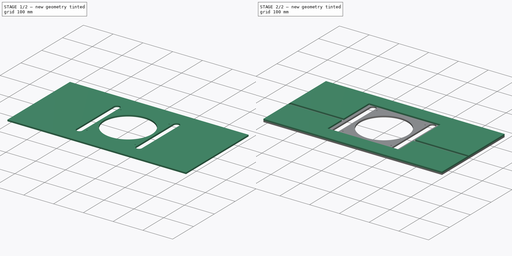
[diagram: build sequence overview — one tinted view per stage of 2, left to right]
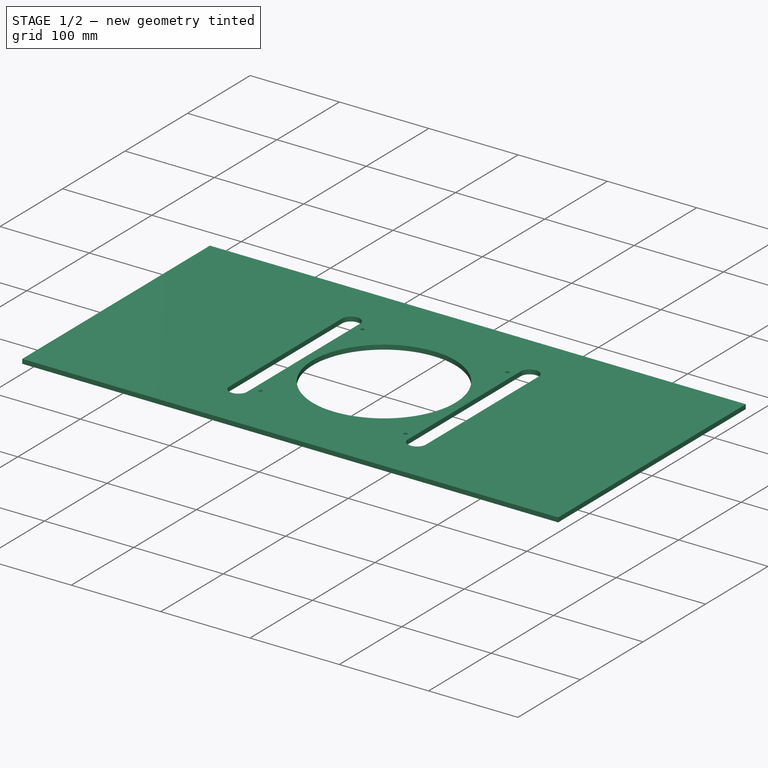
[diagram: stage 1 of 2 — iso view after this stage's code; geometry added in this stage tinted green]
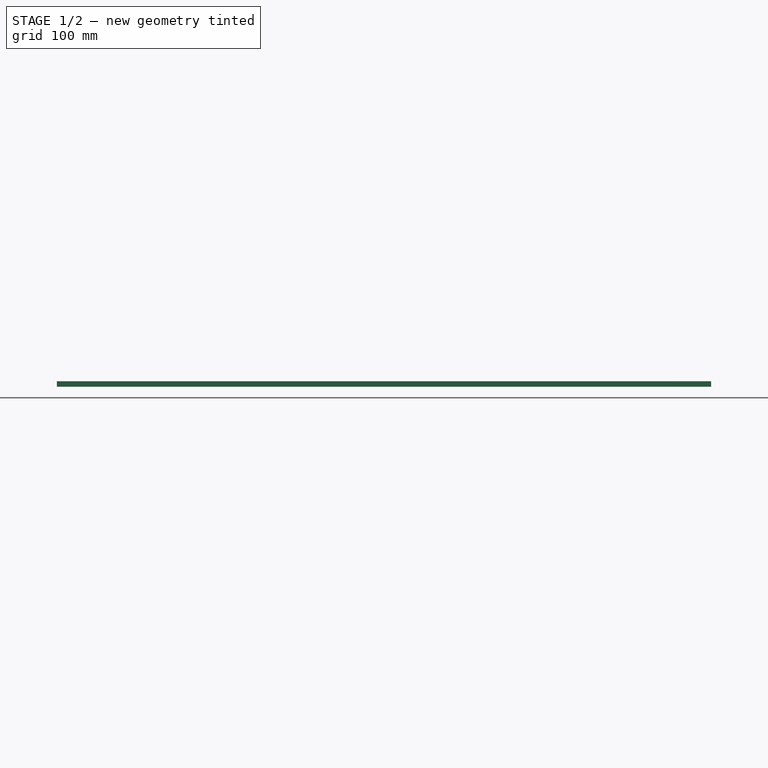
[diagram: stage 1 of 2 — front view after this stage's code; geometry added in this stage tinted green]
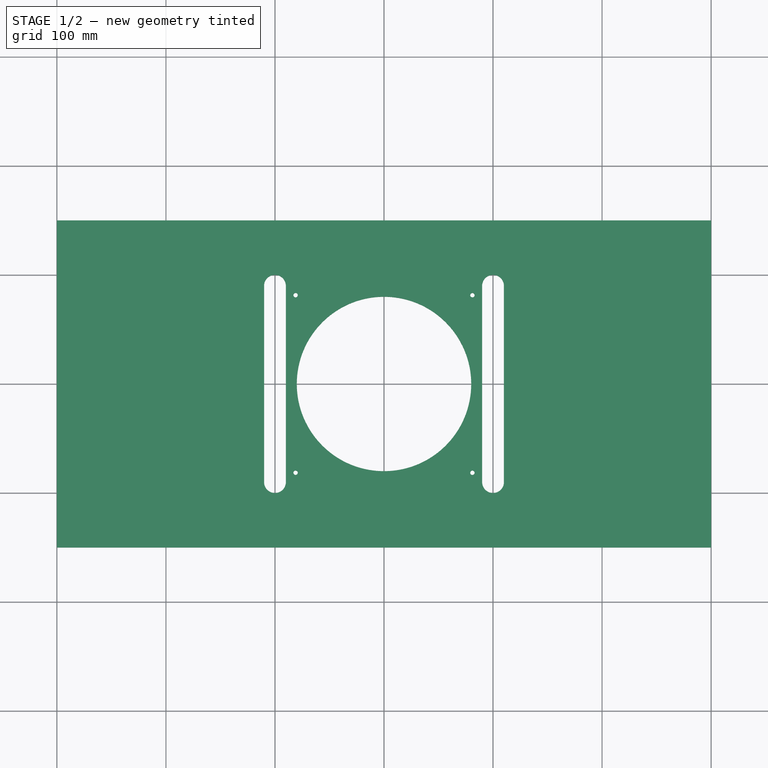
[diagram: stage 1 of 2 — top view after this stage's code; geometry added in this stage tinted green]
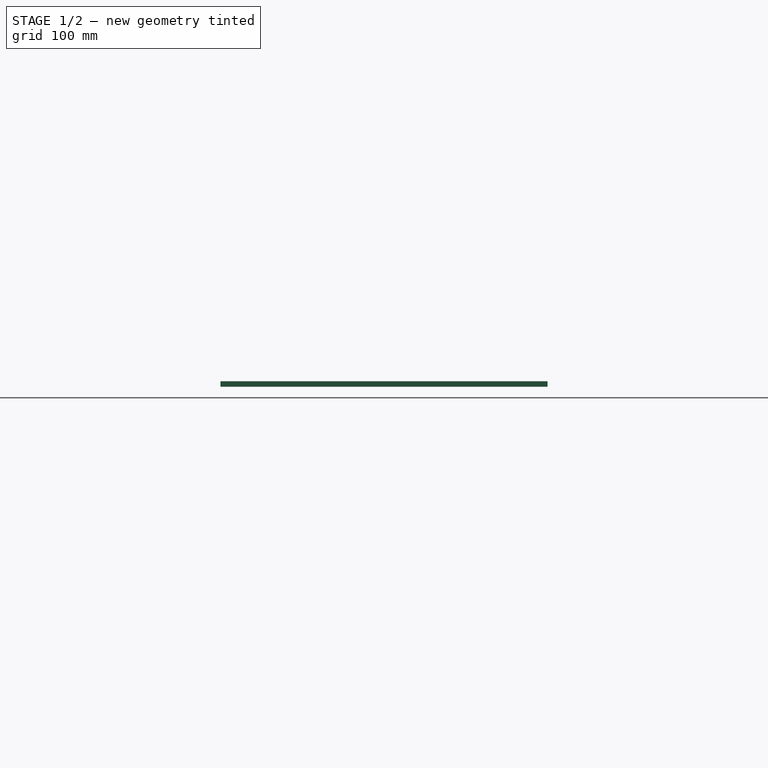
[diagram: stage 1 of 2 — right view after this stage's code; geometry added in this stage tinted green]
FCSTD DOCUMENT  (FreeCAD 0.21R33668 +26 (Git))
Label: router_accesories
License: All rights reserved
LicenseURL: http://en.wikipedia.org/wiki/All_rights_reserved
objects: Sketcher::SketchObject×4, PartDesign::Pad×2, PartDesign::Pocket×2, PartDesign::Body×2, Spreadsheet::Sheet×1
note: 14 computed .brp shape members not serialized (recipe doc carries the construction recipe); baked Part::Feature solids carry a one-line shape summary decoded from their .brp

FEATURE [PartDesign::Body] Body  label="Base01"
  Group = -> [Sketch,Pad,Sketch001,Pocket]
  Origin = -> Origin
  Tip = -> Pocket
FEATURE [Sketcher::SketchObject] Sketch002
  AttachmentOffset = pos=(0,0,-5) rot=(0,0,1;0rad)
  FullyConstrained = true
  MapMode = 5
  Placement = pos=(0,0,-5) rot=(0,0,1;0rad)
  Support = -> [XY_Plane001]
  expr: .AttachmentOffset.Base.z = -<<Dimensions>>.acrylic_width
  expr: Constraints[6] = <<Dimensions>>.base_width
  expr: Constraints[7] = <<Dimensions>>.base_depth
  sketch-geometry (4):
    g0: LineSegment StartX=-300 StartY=150 StartZ=0 EndX=300 EndY=150 EndZ=0
    g1: LineSegment StartX=300 StartY=150 StartZ=0 EndX=300 EndY=-150 EndZ=0
    g2: LineSegment StartX=300 StartY=-150 StartZ=0 EndX=-300 EndY=-150 EndZ=0
    g3: LineSegment StartX=-300 StartY=-150 StartZ=0 EndX=-300 EndY=150 EndZ=0
  constraints (10):
    c: Coincident(g0,g1)
    c: Coincident(g1,g2)
    c: Coincident(g2,g3)
    c: Coincident(g3,g0)
    c: Horizontal(g2)
    c: Vertical(g1)
    c: DistanceX(g0,g0) = 600
    c: DistanceY(g3,g3) = 300
    c: Symmetric(g0,g0,g-2)
    c: Symmetric(g2,g0,g-1)
FEATURE [PartDesign::Pad] Pad001
  Direction = (0,0,1)
  Length = 5
  Length2 = 10
  Profile = -> Sketch002
  ReferenceAxis = -> Sketch002 [N_Axis]
  Type = 0
  expr: Length = <<Dimensions>>.acrylic_width
FEATURE [Sketcher::SketchObject] Sketch003
  FullyConstrained = false
  MapMode = 5
  Support = -> [Pad001]
  expr: Constraints[18] = <<Dimensions>>.insert_depth - 20
  expr: Constraints[1] = <<Dimensions>>.router_base_diameter
  sketch-geometry (13):
    g0: Circle CenterX=0 CenterY=0 CenterZ=0 NormalX=0 NormalY=0 NormalZ=1 AngleXU=0 Radius=80
    g1: ArcOfCircle CenterX=-100 CenterY=90 CenterZ=0 NormalX=0 NormalY=0 NormalZ=1 AngleXU=0 Radius=10 StartAngle=-4.494e-13 EndAngle=3.14159
    g2: ArcOfCircle CenterX=-100 CenterY=-90 CenterZ=0 NormalX=0 NormalY=0 NormalZ=1 AngleXU=0 Radius=10 StartAngle=3.14159 EndAngle=6.28319
    g3: LineSegment StartX=-110 StartY=90 StartZ=0 EndX=-110 EndY=-90 EndZ=0
    g4: LineSegment StartX=-90 StartY=-90 StartZ=0 EndX=-90 EndY=90 EndZ=0
    g5: ArcOfCircle CenterX=100 CenterY=90 CenterZ=0 NormalX=0 NormalY=0 NormalZ=1 AngleXU=0 Radius=10 StartAngle=0 EndAngle=3.14159
    g6: ArcOfCircle CenterX=100 CenterY=-90 CenterZ=0 NormalX=0 NormalY=0 NormalZ=1 AngleXU=0 Radius=10 StartAngle=3.14159 EndAngle=6.28319
    g7: LineSegment StartX=90 StartY=90 StartZ=0 EndX=90 EndY=-90 EndZ=0
    g8: LineSegment StartX=110 StartY=-90 StartZ=0 EndX=110 EndY=90 EndZ=0
    g9: Circle CenterX=-81.0989 CenterY=81.4435 CenterZ=0 NormalX=0 NormalY=0 NormalZ=1 AngleXU=0 Radius=2
    g10: Circle CenterX=81.0989 CenterY=81.4435 CenterZ=0 NormalX=0 NormalY=0 NormalZ=1 AngleXU=0 Radius=2
    g11: Circle CenterX=-81.0989 CenterY=-81.4435 CenterZ=0 NormalX=0 NormalY=0 NormalZ=1 AngleXU=0 Radius=2
    g12: Circle CenterX=81.0989 CenterY=-81.4435 CenterZ=0 NormalX=0 NormalY=0 NormalZ=1 AngleXU=0 Radius=2
  constraints (26):
    c: Coincident(g0,g-1)
    c: Diameter(g0) = 160
    c: Tangent(g1,g3) = -1.5708
    c: Tangent(g3,g2) = -1.5708
    c: Tangent(g2,g4) = -1.5708
    c: Tangent(g4,g1) = -1.5708
    c: Vertical(g3)
    c: Tangent(g5,g7) = -1.5708
    c: Tangent(g7,g6) = -1.5708
    c: Tangent(g6,g8) = -1.5708
    c: Tangent(g8,g5) = -1.5708
    c: Vertical(g7)
    c: Symmetric(g5,g1,g-2)
    c: Equal(g1,g6)
    c: Radius(g1) = 10
    c: Symmetric(g1,g2,g-1)
    c: DistanceX(g1,g-1) = 100
    c: Symmetric(g6,g5,g-1)
    c: DistanceY(g2,g1) = 180
    c: Equal(g9,g11)
    c: Equal(g9,g12)
    c: Equal(g9,g10)
    c: Diameter(g9) = 4
    c: Symmetric(g9,g10,g-2)
    c: Symmetric(g10,g12,g-1)
    c: Symmetric(g11,g12,g-2)
FEATURE [PartDesign::Pocket] Pocket001
  BaseFeature = -> Pad001
  Direction = (0,0,-1)
  Length = 5
  Length2 = 5
  Profile = -> Sketch003
  ReferenceAxis = -> Sketch003 [N_Axis]
  Type = 0
FEATURE [PartDesign::Body] Body001  label="Base002"
  Group = -> [Sketch002,Pad001,Sketch003,Pocket001]
  Origin = -> Origin001
  Tip = -> Pocket001
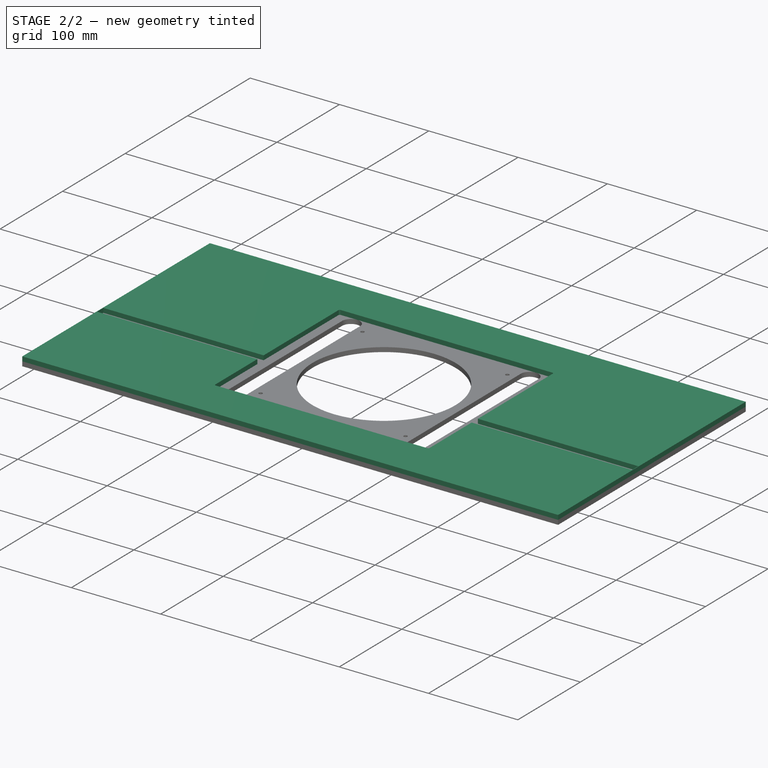
[diagram: stage 2 of 2 — iso view after this stage's code; geometry added in this stage tinted green]
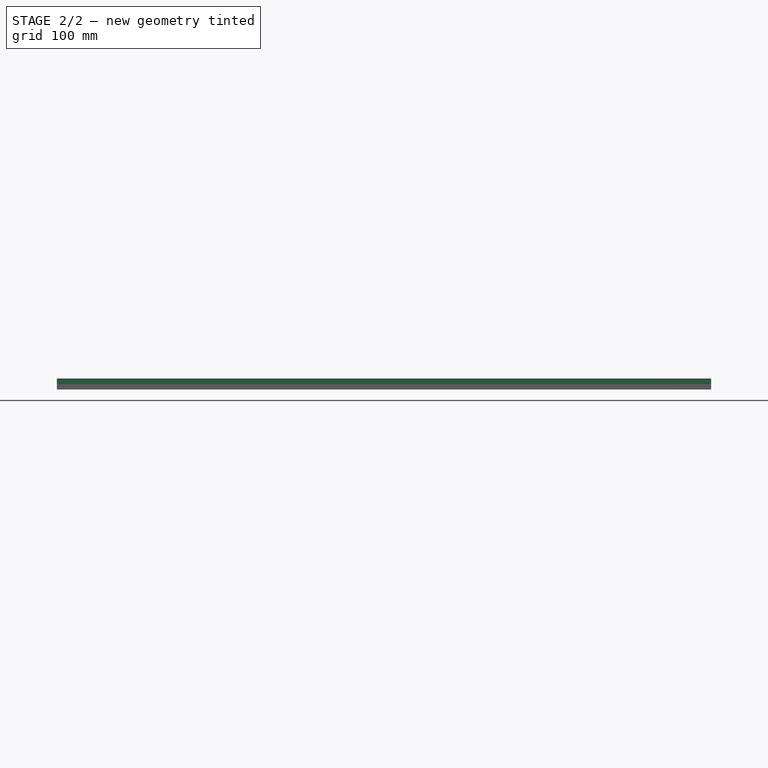
[diagram: stage 2 of 2 — front view after this stage's code; geometry added in this stage tinted green]
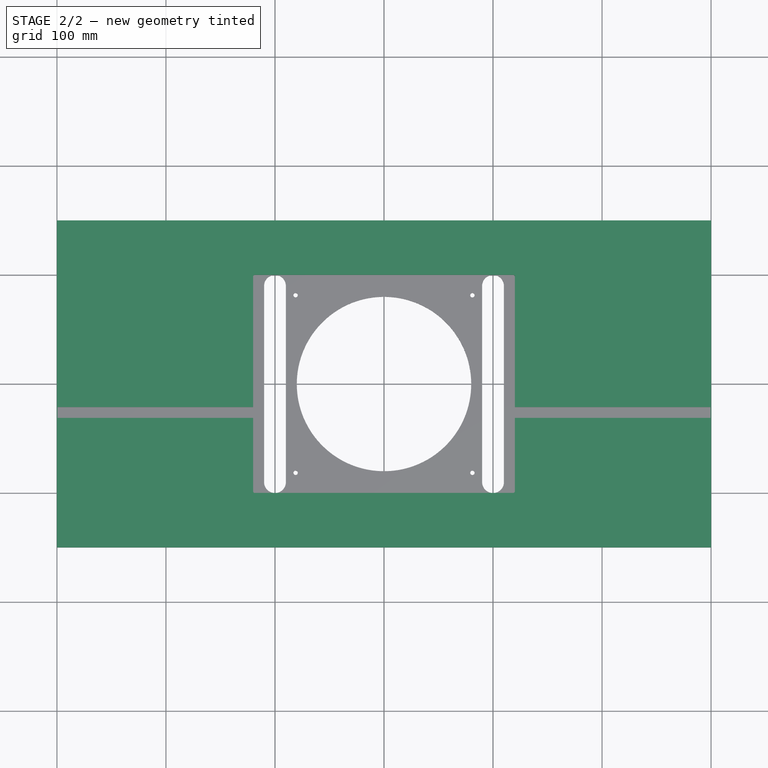
[diagram: stage 2 of 2 — top view after this stage's code; geometry added in this stage tinted green]
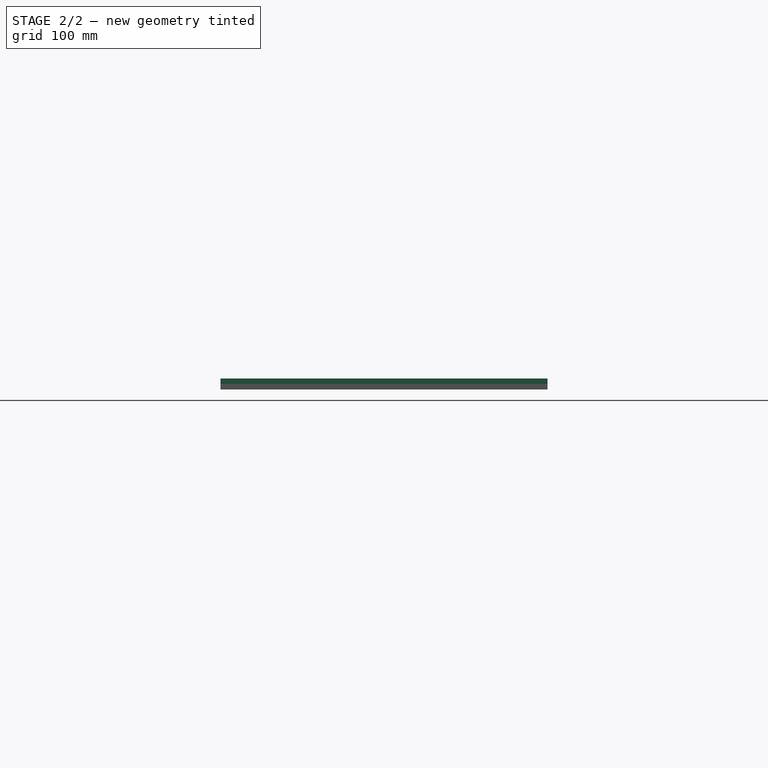
[diagram: stage 2 of 2 — right view after this stage's code; geometry added in this stage tinted green]
FEATURE [Sketcher::SketchObject] Sketch
  FullyConstrained = true
  MapMode = 5
  Support = -> [XY_Plane]
  expr: Constraints[6] = <<Dimensions>>.base_width
  expr: Constraints[7] = <<Dimensions>>.base_depth
  sketch-geometry (4):
    g0: LineSegment StartX=-300 StartY=150 StartZ=0 EndX=300 EndY=150 EndZ=0
    g1: LineSegment StartX=300 StartY=150 StartZ=0 EndX=300 EndY=-150 EndZ=0
    g2: LineSegment StartX=300 StartY=-150 StartZ=0 EndX=-300 EndY=-150 EndZ=0
    g3: LineSegment StartX=-300 StartY=-150 StartZ=0 EndX=-300 EndY=150 EndZ=0
  constraints (10):
    c: Coincident(g0,g1)
    c: Coincident(g1,g2)
    c: Coincident(g2,g3)
    c: Coincident(g3,g0)
    c: Horizontal(g2)
    c: Vertical(g1)
    c: DistanceX(g0,g0) = 600
    c: DistanceY(g3,g3) = 300
    c: Symmetric(g0,g0,g-2)
    c: Symmetric(g2,g0,g-1)
FEATURE [PartDesign::Pad] Pad
  Direction = (0,0,1)
  Length = 5
  Length2 = 10
  Profile = -> Sketch
  ReferenceAxis = -> Sketch [N_Axis]
  Type = 0
  expr: Length = <<Dimensions>>.acrylic_width
FEATURE [Sketcher::SketchObject] Sketch001
  FullyConstrained = true
  MapMode = 5
  Placement = pos=(0,0,5) rot=(0,0,1;0rad)
  Support = -> [Pad]
  expr: Constraints[11] = <<Dimensions>>.insert_border_radius
  expr: Constraints[12] = <<Dimensions>>.insert_width
  expr: Constraints[14] = <<Dimensions>>.insert_depth
  expr: Constraints[26] = <<Dimensions>>.base_width - 1
  sketch-geometry (16):
    g0: LineSegment StartX=-118.502 StartY=100 StartZ=0 EndX=118.502 EndY=100 EndZ=0
    g1: LineSegment StartX=120.002 StartY=98.4999 StartZ=0 EndX=119.998 EndY=-21.1851 EndZ=0
    g2: LineSegment StartX=118.502 StartY=-100 StartZ=0 EndX=-118.502 EndY=-99.9951 EndZ=0
    g3: LineSegment StartX=-119.998 StartY=-98.5 StartZ=0 EndX=-119.998 EndY=-31.1851 EndZ=0
    g4: ArcOfCircle CenterX=-118.502 CenterY=98.5 CenterZ=0 NormalX=0 NormalY=0 NormalZ=1 AngleXU=0 Radius=1.5 StartAngle=1.5708 EndAngle=3.22219
    g5: ArcOfCircle CenterX=-118.502 CenterY=-98.5 CenterZ=0 NormalX=0 NormalY=0 NormalZ=1 AngleXU=0 Radius=1.49513 StartAngle=3.14159 EndAngle=4.71237
    g6: ArcOfCircle CenterX=118.502 CenterY=-98.5 CenterZ=0 NormalX=0 NormalY=0 NormalZ=1 AngleXU=0 Radius=1.5 StartAngle=4.71237 EndAngle=6.28319
    g7: ArcOfCircle CenterX=118.502 CenterY=98.5 CenterZ=0 NormalX=0 NormalY=0 NormalZ=1 AngleXU=0 Radius=1.5 StartAngle=6.28314 EndAngle=7.85398
    g8: LineSegment StartX=-119.998 StartY=-21.1851 StartZ=0 EndX=-299.5 EndY=-21.1851 EndZ=0
    g9: LineSegment StartX=-299.5 StartY=-21.1851 StartZ=0 EndX=-299.5 EndY=-31.1851 EndZ=0
    g10: LineSegment StartX=-299.5 StartY=-31.1851 StartZ=0 EndX=-119.998 EndY=-31.1851 EndZ=0
    g11: LineSegment StartX=119.998 StartY=-21.1851 StartZ=0 EndX=299.5 EndY=-21.1851 EndZ=0
    g12: LineSegment StartX=299.5 StartY=-21.1851 StartZ=0 EndX=299.5 EndY=-31.1851 EndZ=0
    g13: LineSegment StartX=299.5 StartY=-31.1851 StartZ=0 EndX=120.002 EndY=-31.1851 EndZ=0
    g14: LineSegment StartX=-119.998 StartY=-21.1851 StartZ=0 EndX=-119.998 EndY=98.3792 EndZ=0
    g15: LineSegment StartX=120.002 StartY=-31.1851 StartZ=0 EndX=120.002 EndY=-98.5 EndZ=0
  constraints (42):
    c: Vertical(g3)
    c: Tangent(g0,g4) = 1.5708
    c: Coincident(g14,g4) = 1.5708
    c: Tangent(g3,g5) = 1.5708
    c: Tangent(g2,g5) = 1.5708
    c: Tangent(g2,g6) = 1.5708
    c: Coincident(g15,g6) = 1.5708
    c: Tangent(g1,g7) = 1.5708
    c: Tangent(g0,g7) = 1.5708
    c: Equal(g4,g6)
    c: Equal(g4,g7)
    c: Diameter(g4) = 3
    c: DistanceX(g14,g1) = 240
    c: Symmetric(g4,g7,g-2)
    c: DistanceY(g2,g0) = 200
    c: Symmetric(g5,g4,g-1)
    c: Coincident(g8,g9)
    c: Coincident(g9,g10)
    c: Horizontal(g8)
    c: Horizontal(g10)
    c: Vertical(g9)
    c: Coincident(g11,g12)
    c: Coincident(g12,g13)
    c: Horizontal(g11)
    c: Horizontal(g13)
    c: Vertical(g12)
    c: DistanceX(g8,g11) = 599
    c: Symmetric(g8,g11,g-2)
    c: Equal(g9,g12)
    c: DistanceY(g9,g9) = 10
    c: Coincident(g14,g8)
    c: Coincident(g1,g11)
    c: Vertical(g14)
    c: Coincident(g10,g3)
    c: Coincident(g13,g15)
    c: Symmetric(g5,g6,g-2)
    c: Vertical(g15)
    c: Equal(g0,g2)
    c: DistanceY(g2,g3) = 68.81
    c: Equal(g3,g15)
    c: Equal(g8,g10)
    c: Equal(g10,g11)
FEATURE [Spreadsheet::Sheet] Spreadsheet  label="Dimensions"
  cells = A2='Base Width; B2(base_width)=600; A3='Base Depth; B3(base_depth)=300; A4='Acrylic Width; B4(acrylic_width)=5; A5='Insert Width; B5(insert_width)=240; A6='Insert Depth; B6(insert_depth)=200; A7='Insert Height; B7(insert_height)=5; A8='Insert Border Radius; B8(insert_border_radius)=3; A9='Router Base Diameter; B9(router_base_diameter)=160; A10='Router Hole Distance; B10(router_hole_distance)=80
FEATURE [PartDesign::Pocket] Pocket
  BaseFeature = -> Pad
  Direction = (0,0,-1)
  Length = 5
  Length2 = 5
  Profile = -> Sketch001
  ReferenceAxis = -> Sketch001 [N_Axis]
  Type = 0
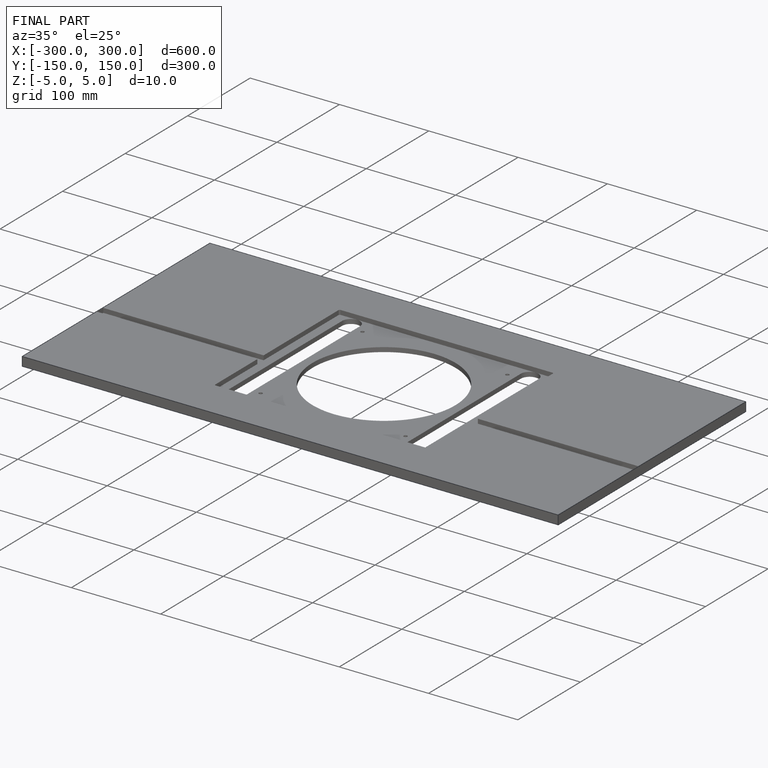
[diagram: finished part — iso view with bounding-box wireframe]
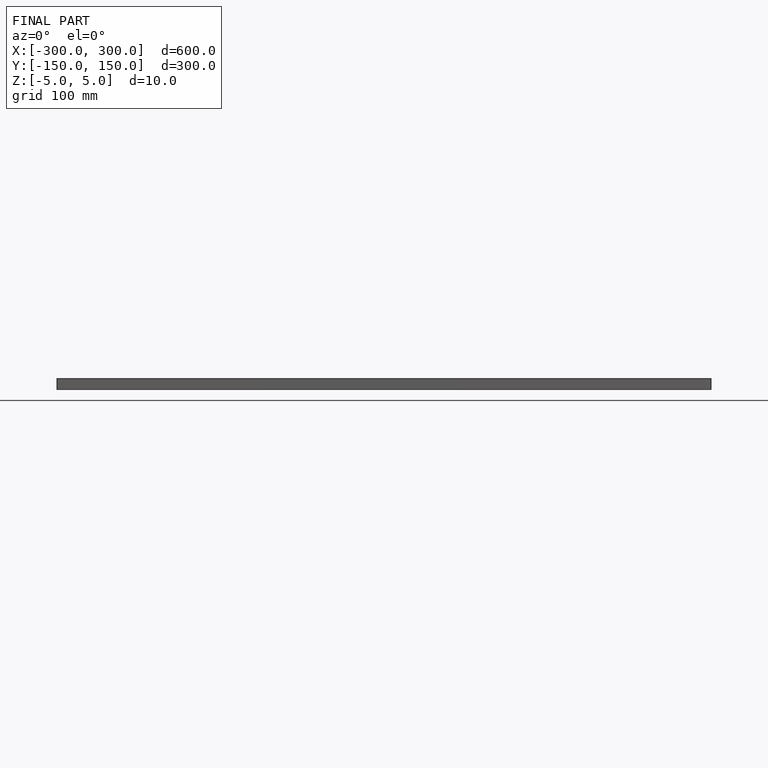
[diagram: finished part — front view with bounding-box wireframe]
